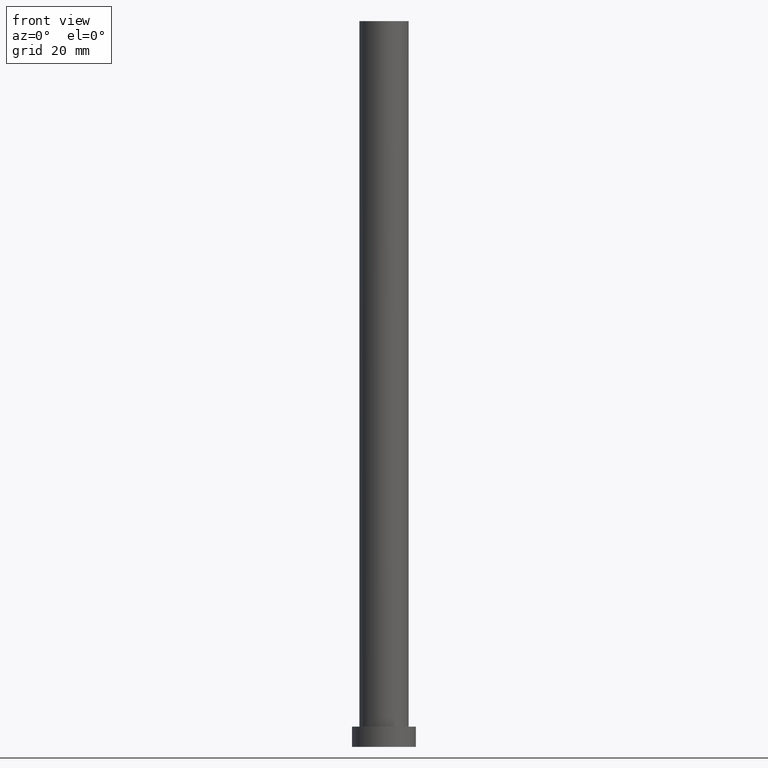
[diagram: clean part render]
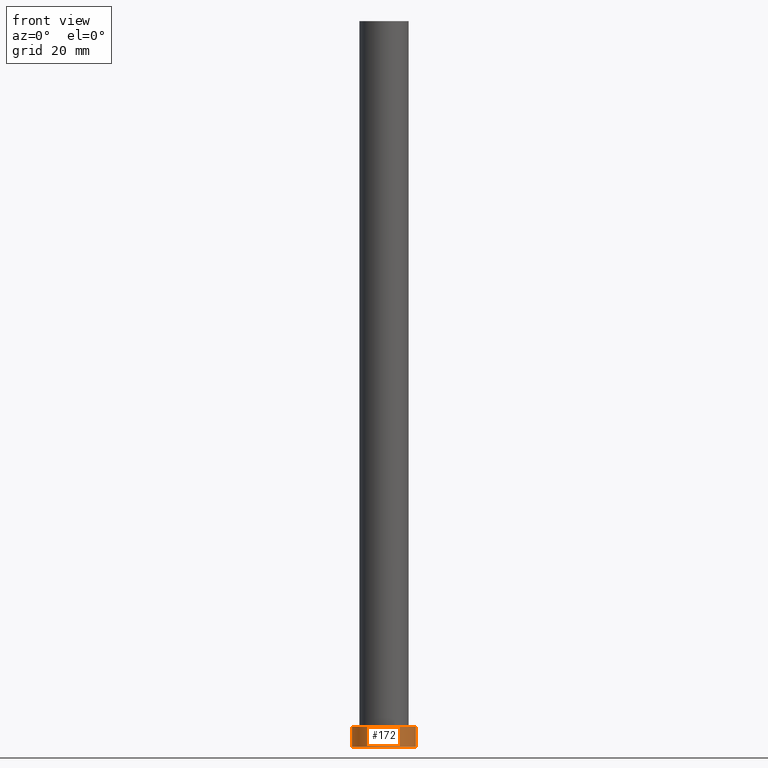
[diagram: same view with one face highlighted and labeled with its STEP entity id]
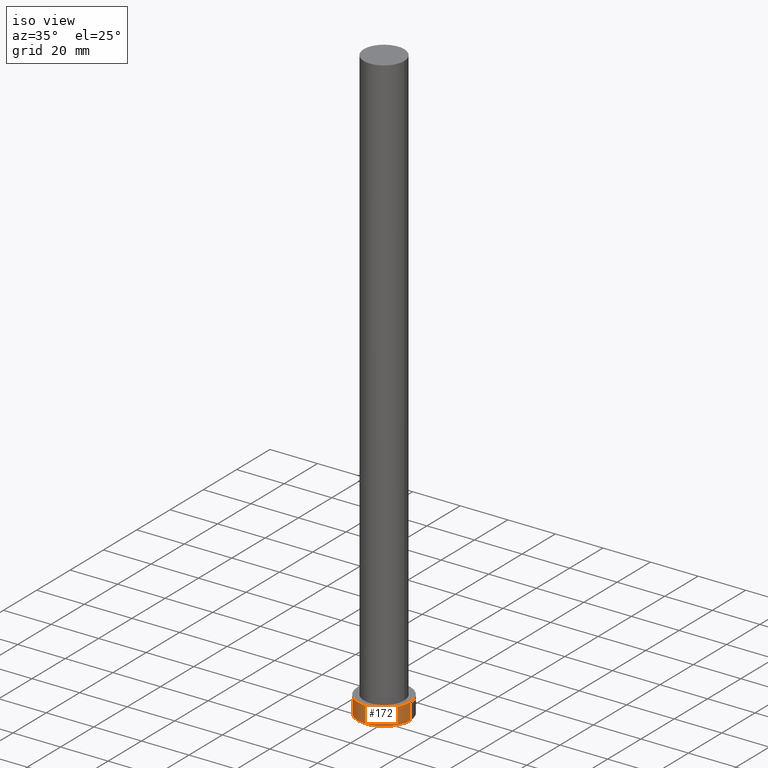
[diagram: same view with one face highlighted and labeled with its STEP entity id]
A machine part, front view. The second image highlights one B-rep face of the part: STEP entity #172.
A second angle (iso view) of the same face is appended — the face is thin or edge-on in the first view.
In plain terms, the highlighted cylindrical surface (edge-blend (fillet) strip) has radius 11 mm, axis along (-0, -0, -1).
Its self-contained STEP definition (entity closure, byte-faithful):
#11 = VERTEX_POINT ( 'NONE', #253 ) ;
#26 = CARTESIAN_POINT ( 'NONE',  ( 11.00000000000000000, 1.347111479062088405E-15, 0.000000000000000000 ) ) ;
#28 = CARTESIAN_POINT ( 'NONE',  ( 11.00000000000000000, 1.347111479062088405E-15, 7.000000000000000000 ) ) ;
#33 = VERTEX_POINT ( 'NONE', #214 ) ;
#43 = EDGE_LOOP ( 'NONE', ( #111, #202, #81, #135 ) ) ;
#44 = EDGE_CURVE ( 'NONE', #148, #33, #65, .T. ) ;
#47 = CARTESIAN_POINT ( 'NONE',  ( 0.000000000000000000, 0.000000000000000000, 7.000000000000000000 ) ) ;
#65 = CIRCLE ( 'NONE', #109, 11.00000000000000000 ) ;
#69 = EDGE_CURVE ( 'NONE', #148, #11, #178, .T. ) ;
#75 = DIRECTION ( 'NONE',  ( -0.000000000000000000, -0.000000000000000000, -1.000000000000000000 ) ) ;
#81 = ORIENTED_EDGE ( 'NONE', *, *, #69, .T. ) ;
#83 = CARTESIAN_POINT ( 'NONE',  ( -11.00000000000000000, 0.000000000000000000, 7.000000000000000000 ) ) ;
#85 = CARTESIAN_POINT ( 'NONE',  ( -11.00000000000000000, 0.000000000000000000, 7.000000000000000000 ) ) ;
#87 = AXIS2_PLACEMENT_3D ( 'NONE', #153, #134, #206 ) ;
#93 = VERTEX_POINT ( 'NONE', #26 ) ;
#103 = CIRCLE ( 'NONE', #87, 11.00000000000000000 ) ;
#109 = AXIS2_PLACEMENT_3D ( 'NONE', #145, #147, #232 ) ;
#111 = ORIENTED_EDGE ( 'NONE', *, *, #149, .F. ) ;
#112 = EDGE_CURVE ( 'NONE', #11, #93, #103, .T. ) ;
#128 = AXIS2_PLACEMENT_3D ( 'NONE', #47, #205, #180 ) ;
#134 = DIRECTION ( 'NONE',  ( 0.000000000000000000, 0.000000000000000000, 1.000000000000000000 ) ) ;
#135 = ORIENTED_EDGE ( 'NONE', *, *, #112, .T. ) ;
#141 = CYLINDRICAL_SURFACE ( 'NONE', #128, 11.00000000000000000 ) ;
#145 = CARTESIAN_POINT ( 'NONE',  ( 0.000000000000000000, 0.000000000000000000, 7.000000000000000000 ) ) ;
#147 = DIRECTION ( 'NONE',  ( 0.000000000000000000, 0.000000000000000000, 1.000000000000000000 ) ) ;
#148 = VERTEX_POINT ( 'NONE', #85 ) ;
#149 = EDGE_CURVE ( 'NONE', #33, #93, #164, .T. ) ;
#153 = CARTESIAN_POINT ( 'NONE',  ( 0.000000000000000000, 0.000000000000000000, 0.000000000000000000 ) ) ;
#164 = LINE ( 'NONE', #28, #243 ) ;
#166 = VECTOR ( 'NONE', #75, 1000.000000000000000 ) ;
#172 = ADVANCED_FACE ( 'NONE', ( #247 ), #141, .T. ) ;
#178 = LINE ( 'NONE', #83, #166 ) ;
#180 = DIRECTION ( 'NONE',  ( -1.000000000000000000, 0.000000000000000000, 0.000000000000000000 ) ) ;
#202 = ORIENTED_EDGE ( 'NONE', *, *, #44, .F. ) ;
#205 = DIRECTION ( 'NONE',  ( -0.000000000000000000, -0.000000000000000000, -1.000000000000000000 ) ) ;
#206 = DIRECTION ( 'NONE',  ( 1.000000000000000000, 0.000000000000000000, 0.000000000000000000 ) ) ;
#214 = CARTESIAN_POINT ( 'NONE',  ( 11.00000000000000000, 1.347111479062088405E-15, 7.000000000000000000 ) ) ;
#222 = DIRECTION ( 'NONE',  ( -0.000000000000000000, -0.000000000000000000, -1.000000000000000000 ) ) ;
#232 = DIRECTION ( 'NONE',  ( 1.000000000000000000, 0.000000000000000000, 0.000000000000000000 ) ) ;
#243 = VECTOR ( 'NONE', #222, 1000.000000000000000 ) ;
#247 = FACE_OUTER_BOUND ( 'NONE', #43, .T. ) ;
#253 = CARTESIAN_POINT ( 'NONE',  ( -11.00000000000000000, 0.000000000000000000, 0.000000000000000000 ) ) ;